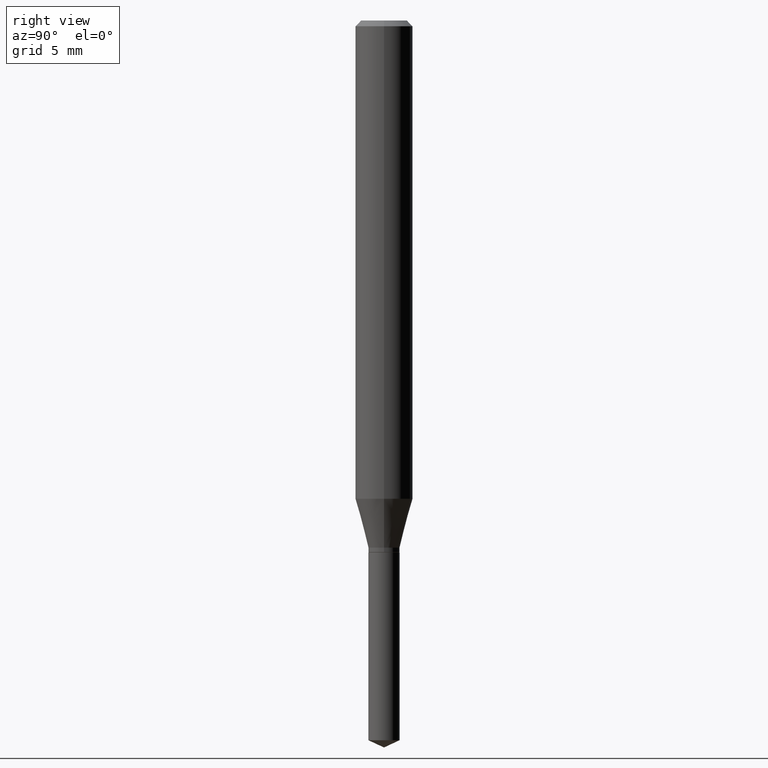
[diagram: clean part render]
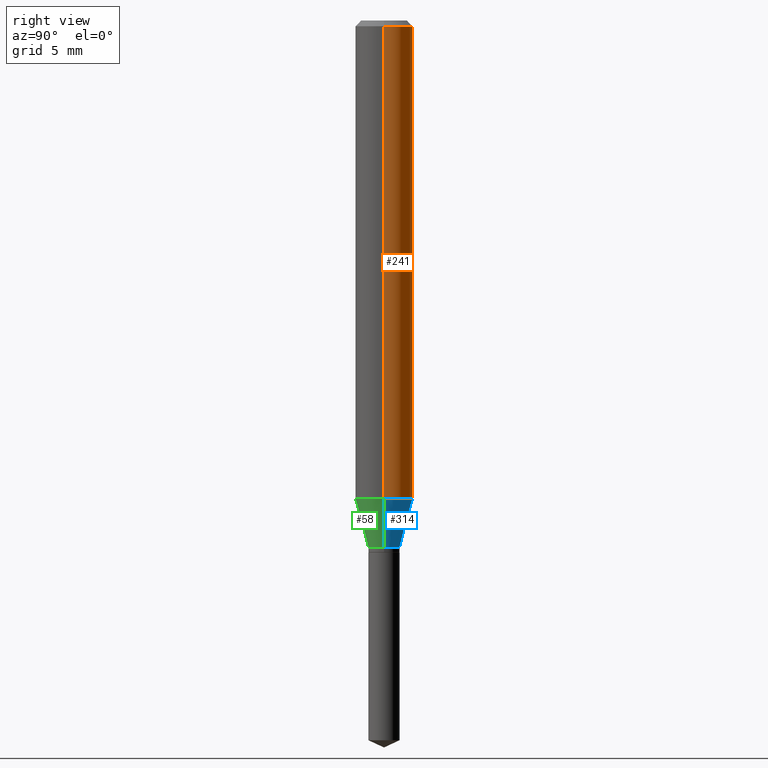
[diagram: same view with three faces highlighted in distinct colors, each labeled with its STEP entity id]
A machine part, right view with three faces highlighted in distinct colors.
Their STEP definitions:

[orange] entity #241 — the highlighted cylindrical surface (edge-blend (fillet) strip) has radius 1.4999 mm, axis along (-0, 0, 1).
#1 = VERTEX_POINT ( 'NONE', #342 ) ;
#9 = EDGE_CURVE ( 'NONE', #115, #1, #235, .T. ) ;
#14 = DIRECTION ( 'NONE',  ( -2.445468806185136877E-29, 3.491481338843145188E-15, 1.000000000000000000 ) ) ;
#30 = EDGE_LOOP ( 'NONE', ( #272, #233, #410, #280 ) ) ;
#46 = DIRECTION ( 'NONE',  ( -2.445468806185136597E-29, 3.491481338843145583E-15, 1.000000000000000000 ) ) ;
#55 = CARTESIAN_POINT ( 'NONE',  ( 0.05905000000000006077, -4.123439461173744764E-16, 2.879382386107503023E-30 ) ) ;
#85 = VECTOR ( 'NONE', #14, 39.37007874015748143 ) ;
#115 = VERTEX_POINT ( 'NONE', #463 ) ;
#138 = DIRECTION ( 'NONE',  ( -2.445468806185136597E-29, 3.491481338843145583E-15, 1.000000000000000000 ) ) ;
#144 = EDGE_CURVE ( 'NONE', #426, #414, #220, .T. ) ;
#148 = AXIS2_PLACEMENT_3D ( 'NONE', #217, #138, #252 ) ;
#170 = CYLINDRICAL_SURFACE ( 'NONE', #148, 0.05905000000000006077 ) ;
#199 = CARTESIAN_POINT ( 'NONE',  ( -0.05904999999999999832, -1.319411316110491759E-15, -0.01181000000000007218 ) ) ;
#211 = LINE ( 'NONE', #55, #85 ) ;
#217 = CARTESIAN_POINT ( 'NONE',  ( 0.000000000000000000, 0.000000000000000000, 0.000000000000000000 ) ) ;
#220 = CIRCLE ( 'NONE', #263, 0.05904999999999999832 ) ;
#231 = VECTOR ( 'NONE', #332, 39.37007874015748143 ) ;
#233 = ORIENTED_EDGE ( 'NONE', *, *, #354, .T. ) ;
#235 = CIRCLE ( 'NONE', #369, 0.05905000000000011628 ) ;
#241 = ADVANCED_FACE ( 'NONE', ( #362 ), #170, .T. ) ;
#244 = DIRECTION ( 'NONE',  ( 1.000000000000000000, -6.982962677686266711E-15, 0.000000000000000000 ) ) ;
#251 = LINE ( 'NONE', #345, #231 ) ;
#252 = DIRECTION ( 'NONE',  ( 1.000000000000000000, -6.982962677686266711E-15, 4.876176775795935793E-29 ) ) ;
#263 = AXIS2_PLACEMENT_3D ( 'NONE', #427, #46, #244 ) ;
#272 = ORIENTED_EDGE ( 'NONE', *, *, #9, .T. ) ;
#273 = CARTESIAN_POINT ( 'NONE',  ( 0.05904999999999999832, -4.535783407291118600E-16, -0.01181000000000007218 ) ) ;
#280 = ORIENTED_EDGE ( 'NONE', *, *, #487, .F. ) ;
#305 = CARTESIAN_POINT ( 'NONE',  ( 2.407126865030695600E-29, -3.436739208541926354E-15, -0.9843212307360184044 ) ) ;
#332 = DIRECTION ( 'NONE',  ( -2.445468806185136877E-29, 3.491481338843145188E-15, 1.000000000000000000 ) ) ;
#342 = CARTESIAN_POINT ( 'NONE',  ( -0.05905000000000011628, -3.017163723075586861E-15, -0.9843212307360184044 ) ) ;
#345 = CARTESIAN_POINT ( 'NONE',  ( -0.05905000000000006077, 4.195754854663395916E-16, -2.904631170795524694E-30 ) ) ;
#354 = EDGE_CURVE ( 'NONE', #1, #414, #251, .T. ) ;
#362 = FACE_OUTER_BOUND ( 'NONE', #30, .T. ) ;
#369 = AXIS2_PLACEMENT_3D ( 'NONE', #305, #405, #415 ) ;
#405 = DIRECTION ( 'NONE',  ( -2.445468806185136597E-29, 3.491481338843145583E-15, 1.000000000000000000 ) ) ;
#410 = ORIENTED_EDGE ( 'NONE', *, *, #144, .F. ) ;
#414 = VERTEX_POINT ( 'NONE', #199 ) ;
#415 = DIRECTION ( 'NONE',  ( 1.000000000000000000, -6.982962677686266711E-15, 0.000000000000000000 ) ) ;
#426 = VERTEX_POINT ( 'NONE', #273 ) ;
#427 = CARTESIAN_POINT ( 'NONE',  ( 2.888098660104664204E-31, -4.123439461173780263E-17, -0.01181000000000007218 ) ) ;
#463 = CARTESIAN_POINT ( 'NONE',  ( 0.05905000000000011628, -3.849083154659301274E-15, -0.9843212307360184044 ) ) ;
#487 = EDGE_CURVE ( 'NONE', #115, #426, #211, .T. ) ;

[blue] entity #314 — the highlighted conical surface has half-angle 15 deg.
#1 = VERTEX_POINT ( 'NONE', #342 ) ;
#9 = EDGE_CURVE ( 'NONE', #115, #1, #235, .T. ) ;
#39 = DIRECTION ( 'NONE',  ( -2.445468806185136597E-29, 3.491481338843145583E-15, 1.000000000000000000 ) ) ;
#41 = CARTESIAN_POINT ( 'NONE',  ( 2.653089107830254266E-29, -3.787908104510928327E-15, -1.084899999999999975 ) ) ;
#66 = VECTOR ( 'NONE', #378, 39.37007874015748854 ) ;
#71 = EDGE_CURVE ( 'NONE', #130, #115, #79, .T. ) ;
#79 = LINE ( 'NONE', #145, #66 ) ;
#86 = AXIS2_PLACEMENT_3D ( 'NONE', #41, #39, #267 ) ;
#93 = LINE ( 'NONE', #214, #147 ) ;
#98 = VERTEX_POINT ( 'NONE', #355 ) ;
#115 = VERTEX_POINT ( 'NONE', #463 ) ;
#130 = VERTEX_POINT ( 'NONE', #357 ) ;
#145 = CARTESIAN_POINT ( 'NONE',  ( 0.03209999999999999659, -4.012061206464657274E-15, -1.084899999999999975 ) ) ;
#147 = VECTOR ( 'NONE', #258, 39.37007874015748854 ) ;
#149 = EDGE_LOOP ( 'NONE', ( #223, #276, #439, #192 ) ) ;
#183 = CONICAL_SURFACE ( 'NONE', #380, 0.03209999999999999659, 0.2617993877991498519 ) ;
#192 = ORIENTED_EDGE ( 'NONE', *, *, #71, .F. ) ;
#214 = CARTESIAN_POINT ( 'NONE',  ( -0.03209999999999999659, -3.559823886331936833E-15, -1.084899999999999975 ) ) ;
#223 = ORIENTED_EDGE ( 'NONE', *, *, #408, .T. ) ;
#228 = FACE_OUTER_BOUND ( 'NONE', #149, .T. ) ;
#235 = CIRCLE ( 'NONE', #369, 0.05905000000000011628 ) ;
#258 = DIRECTION ( 'NONE',  ( -0.2588190451025211281, 5.211531920934547886E-15, 0.9659258262890679791 ) ) ;
#267 = DIRECTION ( 'NONE',  ( 1.000000000000000000, -6.982962677686263555E-15, 0.000000000000000000 ) ) ;
#276 = ORIENTED_EDGE ( 'NONE', *, *, #373, .T. ) ;
#305 = CARTESIAN_POINT ( 'NONE',  ( 2.407126865030695600E-29, -3.436739208541926354E-15, -0.9843212307360184044 ) ) ;
#314 = ADVANCED_FACE ( 'NONE', ( #228 ), #183, .T. ) ;
#331 = DIRECTION ( 'NONE',  ( -2.445468806185136597E-29, 3.491481338843145583E-15, 1.000000000000000000 ) ) ;
#342 = CARTESIAN_POINT ( 'NONE',  ( -0.05905000000000011628, -3.017163723075586861E-15, -0.9843212307360184044 ) ) ;
#355 = CARTESIAN_POINT ( 'NONE',  ( -0.03209999999999999659, -3.575710126423672121E-15, -1.084899999999999975 ) ) ;
#357 = CARTESIAN_POINT ( 'NONE',  ( 0.03209999999999999659, -4.012061206464657274E-15, -1.084899999999999975 ) ) ;
#369 = AXIS2_PLACEMENT_3D ( 'NONE', #305, #405, #415 ) ;
#373 = EDGE_CURVE ( 'NONE', #98, #1, #93, .T. ) ;
#378 = DIRECTION ( 'NONE',  ( 0.2588190451025211281, 1.565188264969622954E-15, 0.9659258262890679791 ) ) ;
#380 = AXIS2_PLACEMENT_3D ( 'NONE', #397, #331, #475 ) ;
#397 = CARTESIAN_POINT ( 'NONE',  ( 2.653089107830254266E-29, -3.787908104510928327E-15, -1.084899999999999975 ) ) ;
#405 = DIRECTION ( 'NONE',  ( -2.445468806185136597E-29, 3.491481338843145583E-15, 1.000000000000000000 ) ) ;
#408 = EDGE_CURVE ( 'NONE', #130, #98, #413, .T. ) ;
#413 = CIRCLE ( 'NONE', #86, 0.03209999999999999659 ) ;
#415 = DIRECTION ( 'NONE',  ( 1.000000000000000000, -6.982962677686266711E-15, 0.000000000000000000 ) ) ;
#439 = ORIENTED_EDGE ( 'NONE', *, *, #9, .F. ) ;
#463 = CARTESIAN_POINT ( 'NONE',  ( 0.05905000000000011628, -3.849083154659301274E-15, -0.9843212307360184044 ) ) ;
#475 = DIRECTION ( 'NONE',  ( 1.000000000000000000, -6.982962677686263555E-15, 0.000000000000000000 ) ) ;

[green] entity #58 — the highlighted conical surface has half-angle 15 deg.
#1 = VERTEX_POINT ( 'NONE', #342 ) ;
#11 = DIRECTION ( 'NONE',  ( -2.445468806185136597E-29, 3.491481338843145583E-15, 1.000000000000000000 ) ) ;
#31 = AXIS2_PLACEMENT_3D ( 'NONE', #288, #11, #203 ) ;
#58 = ADVANCED_FACE ( 'NONE', ( #294 ), #325, .T. ) ;
#64 = EDGE_CURVE ( 'NONE', #1, #115, #392, .T. ) ;
#66 = VECTOR ( 'NONE', #378, 39.37007874015748854 ) ;
#71 = EDGE_CURVE ( 'NONE', #130, #115, #79, .T. ) ;
#79 = LINE ( 'NONE', #145, #66 ) ;
#92 = CARTESIAN_POINT ( 'NONE',  ( 2.653089107830254266E-29, -3.787908104510928327E-15, -1.084899999999999975 ) ) ;
#93 = LINE ( 'NONE', #214, #147 ) ;
#98 = VERTEX_POINT ( 'NONE', #355 ) ;
#110 = DIRECTION ( 'NONE',  ( 1.000000000000000000, -6.982962677686266711E-15, 0.000000000000000000 ) ) ;
#115 = VERTEX_POINT ( 'NONE', #463 ) ;
#125 = AXIS2_PLACEMENT_3D ( 'NONE', #456, #151, #110 ) ;
#130 = VERTEX_POINT ( 'NONE', #357 ) ;
#131 = EDGE_CURVE ( 'NONE', #98, #130, #243, .T. ) ;
#145 = CARTESIAN_POINT ( 'NONE',  ( 0.03209999999999999659, -4.012061206464657274E-15, -1.084899999999999975 ) ) ;
#146 = EDGE_LOOP ( 'NONE', ( #324, #353, #229, #473 ) ) ;
#147 = VECTOR ( 'NONE', #258, 39.37007874015748854 ) ;
#151 = DIRECTION ( 'NONE',  ( -2.445468806185136597E-29, 3.491481338843145583E-15, 1.000000000000000000 ) ) ;
#198 = DIRECTION ( 'NONE',  ( 1.000000000000000000, -6.982962677686263555E-15, 0.000000000000000000 ) ) ;
#203 = DIRECTION ( 'NONE',  ( 1.000000000000000000, -6.982962677686263555E-15, 0.000000000000000000 ) ) ;
#214 = CARTESIAN_POINT ( 'NONE',  ( -0.03209999999999999659, -3.559823886331936833E-15, -1.084899999999999975 ) ) ;
#229 = ORIENTED_EDGE ( 'NONE', *, *, #71, .T. ) ;
#243 = CIRCLE ( 'NONE', #31, 0.03209999999999999659 ) ;
#258 = DIRECTION ( 'NONE',  ( -0.2588190451025211281, 5.211531920934547886E-15, 0.9659258262890679791 ) ) ;
#269 = AXIS2_PLACEMENT_3D ( 'NONE', #92, #421, #198 ) ;
#288 = CARTESIAN_POINT ( 'NONE',  ( 2.653089107830254266E-29, -3.787908104510928327E-15, -1.084899999999999975 ) ) ;
#294 = FACE_OUTER_BOUND ( 'NONE', #146, .T. ) ;
#324 = ORIENTED_EDGE ( 'NONE', *, *, #373, .F. ) ;
#325 = CONICAL_SURFACE ( 'NONE', #269, 0.03209999999999999659, 0.2617993877991498519 ) ;
#342 = CARTESIAN_POINT ( 'NONE',  ( -0.05905000000000011628, -3.017163723075586861E-15, -0.9843212307360184044 ) ) ;
#353 = ORIENTED_EDGE ( 'NONE', *, *, #131, .T. ) ;
#355 = CARTESIAN_POINT ( 'NONE',  ( -0.03209999999999999659, -3.575710126423672121E-15, -1.084899999999999975 ) ) ;
#357 = CARTESIAN_POINT ( 'NONE',  ( 0.03209999999999999659, -4.012061206464657274E-15, -1.084899999999999975 ) ) ;
#373 = EDGE_CURVE ( 'NONE', #98, #1, #93, .T. ) ;
#378 = DIRECTION ( 'NONE',  ( 0.2588190451025211281, 1.565188264969622954E-15, 0.9659258262890679791 ) ) ;
#392 = CIRCLE ( 'NONE', #125, 0.05905000000000011628 ) ;
#421 = DIRECTION ( 'NONE',  ( -2.445468806185136597E-29, 3.491481338843145583E-15, 1.000000000000000000 ) ) ;
#456 = CARTESIAN_POINT ( 'NONE',  ( 2.407126865030695600E-29, -3.436739208541926354E-15, -0.9843212307360184044 ) ) ;
#463 = CARTESIAN_POINT ( 'NONE',  ( 0.05905000000000011628, -3.849083154659301274E-15, -0.9843212307360184044 ) ) ;
#473 = ORIENTED_EDGE ( 'NONE', *, *, #64, .F. ) ;